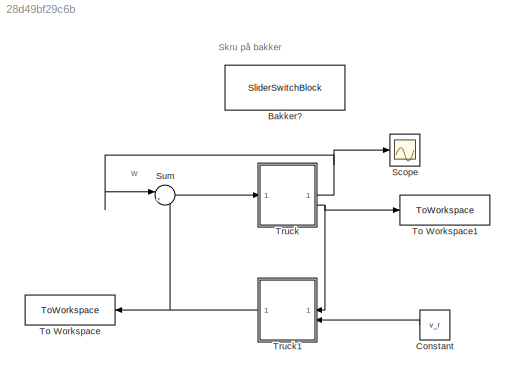
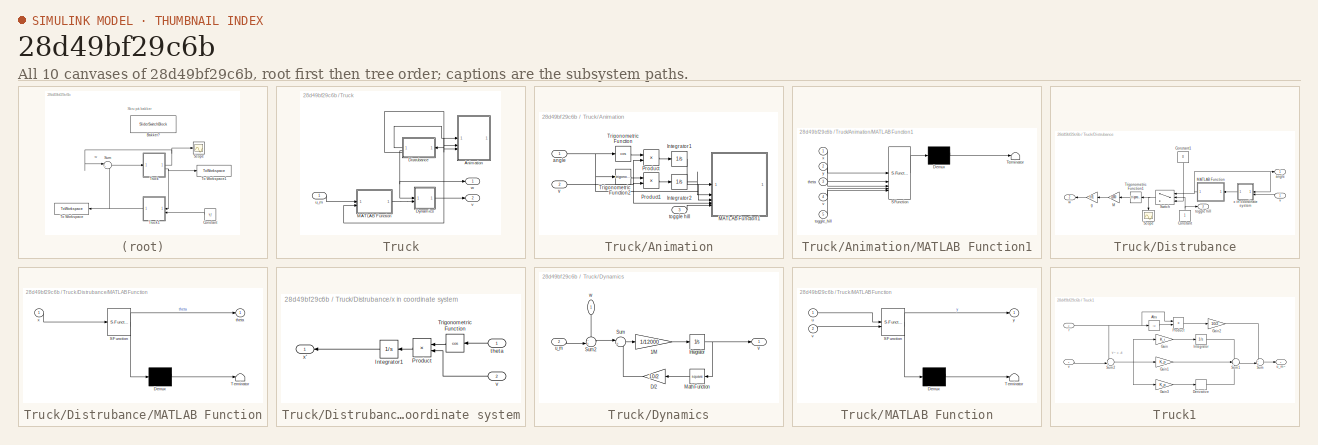
[diagram: thumbnail index - all 10 canvases of the model, root first then tree order]
MODEL slx_28d49bf29c6b
KIND model
CONFIG AbsTol = auto
CONFIG EnableMultiTasking = off
CONFIG FixedStep = auto
CONFIG MaxStep = 0.01
CONFIG MinStep = auto
CONFIG RelTol = 1e-3
CONFIG SampleTimeConstraint = Unconstrained
CONFIG SolverName = VariableStepAuto
CONFIG StartTime = 0.0
CONFIG StopTime = 100
BLOCK [SliderSwitchBlock] Bakker?
  LabelPosition = Hide
BLOCK [Constant] Constant
  NameLocation = top
  Value = v_r
BLOCK [Scope] Scope
  Floating = off
  NumInputPorts = 1
  ScopeSpecificationString = Simulink.scopes.TimeScopeBlockCfg('CurrentConfiguration', extmgr.ConfigurationSet(extmgr.Configuration('Core','General UI',true),extmgr.Configuration('Core','Source UI',true),extmgr.Configuration('Sources','WiredSimulink',true,'DataLoggingVariableName','ScopeData1'),extmgr.Configuration('Visuals','Time Domain',true,'SerializedDisplays',{struct('MinYLimReal','-1.00000','MaxYLimReal','1.00000','YLab...<+1431ch>
BLOCK [Sum] Sum
  Inputs = |++
BLOCK [ToWorkspace] To Workspace
  FixptAsFi = on
  MaxDataPoints = inf
  NameLocation = top
  SampleTime = -1
  VariableName = u_m
BLOCK [ToWorkspace] To Workspace1
  FixptAsFi = on
  MaxDataPoints = inf
  SampleTime = -1
  VariableName = v
BLOCK [SubSystem] Truck
BLOCK [SubSystem] Truck/Animation
BLOCK [Integrator] Truck/Animation/Integrator1
BLOCK [Integrator] Truck/Animation/Integrator2
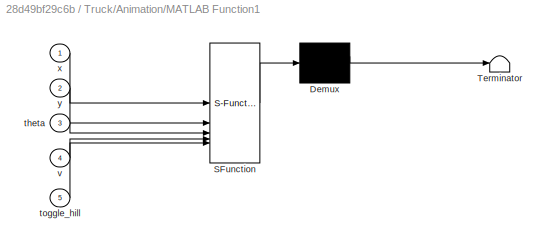
BLOCK [SubSystem] Truck/Animation/MATLAB Function1
  ErrorFcn = Stateflow.Translate.translate
  PermitHierarchicalResolution = ExplicitOnly
  SFBlockType = MATLAB Function
  SystemSampleTime = 1/30
  TreatAsAtomicUnit = on
BLOCK [Demux] Truck/Animation/MATLAB Function1/ Demux 
  Outputs = 1
BLOCK [S-Function] Truck/Animation/MATLAB Function1/ SFunction 
  EnableBusSupport = on
  FunctionName = sf_sfun
  PortCounts = [5 1]
  SFcnIsStateOwnerBlock = off
  SFunctionDeploymentMode = off
  Tag = Stateflow S-Function 3
BLOCK [Terminator] Truck/Animation/MATLAB Function1/ Terminator 
BLOCK [Inport] Truck/Animation/MATLAB Function1/theta
  Port = 3
BLOCK [Inport] Truck/Animation/MATLAB Function1/toggle_hill
  Port = 5
BLOCK [Inport] Truck/Animation/MATLAB Function1/v
  Port = 4
BLOCK [Inport] Truck/Animation/MATLAB Function1/x
BLOCK [Inport] Truck/Animation/MATLAB Function1/y
  Port = 2
BLOCK [Product] Truck/Animation/Product
BLOCK [Product] Truck/Animation/Product1
BLOCK [Trigonometry] Truck/Animation/Trigonometric Function
  Operator = cos
BLOCK [Trigonometry] Truck/Animation/Trigonometric Function2
BLOCK [Inport] Truck/Animation/angle
BLOCK [Inport] Truck/Animation/toggle hill
  Port = 3
BLOCK [Inport] Truck/Animation/v
  Port = 2
BLOCK [SubSystem] Truck/Distrubance
  NameLocation = top
BLOCK [Constant] Truck/Distrubance/Constant
  NameLocation = right
BLOCK [Constant] Truck/Distrubance/Constant1
  NameLocation = left
  Value = 0
BLOCK [Gain] Truck/Distrubance/M
  Gain = 12000
  NameLocation = top
BLOCK [SubSystem] Truck/Distrubance/MATLAB Function
  ErrorFcn = Stateflow.Translate.translate
  NameLocation = top
  PermitHierarchicalResolution = ExplicitOnly
  SFBlockType = MATLAB Function
  TreatAsAtomicUnit = on
BLOCK [Demux] Truck/Distrubance/MATLAB Function/ Demux 
  Outputs = 1
BLOCK [S-Function] Truck/Distrubance/MATLAB Function/ SFunction 
  EnableBusSupport = on
  FunctionName = sf_sfun
  PortCounts = [1 2]
  SFcnIsStateOwnerBlock = off
  SFunctionDeploymentMode = off
  Tag = Stateflow S-Function 2
BLOCK [Terminator] Truck/Distrubance/MATLAB Function/ Terminator 
BLOCK [Outport] Truck/Distrubance/MATLAB Function/theta
BLOCK [Inport] Truck/Distrubance/MATLAB Function/x
BLOCK [Scope] Truck/Distrubance/Scope
  Floating = off
  NameLocation = left
  NumInputPorts = 1
  ScopeSpecificationString = Simulink.scopes.TimeScopeBlockCfg('CurrentConfiguration', extmgr.ConfigurationSet(extmgr.Configuration('Core','General UI',true),extmgr.Configuration('Core','Source UI',true),extmgr.Configuration('Sources','WiredSimulink',true,'DataLoggingVariableName','ScopeData1'),extmgr.Configuration('Visuals','Time Domain',true,'SerializedDisplays',{struct('MinYLimReal','-0.12842','MaxYLimReal','0.1776','YLabe...<+1445ch>
BLOCK [Switch] Truck/Distrubance/Switch
  Criteria = u2 > Threshold
  InputSameDT = off
  NameLocation = top
  SaturateOnIntegerOverflow = off
BLOCK [Trigonometry] Truck/Distrubance/Trigonometric Function1
  NameLocation = top
BLOCK [Outport] Truck/Distrubance/angle
BLOCK [Gain] Truck/Distrubance/g
  Gain = 9.81
  NameLocation = top
BLOCK [Outport] Truck/Distrubance/toggle hill
  Port = 3
BLOCK [Inport] Truck/Distrubance/v
  NameLocation = top
BLOCK [Outport] Truck/Distrubance/w
  NameLocation = top
  Port = 2
BLOCK [SubSystem] Truck/Distrubance/x in coordinate system
  NameLocation = top
BLOCK [Integrator] Truck/Distrubance/x in coordinate system/Integrator1
  NameLocation = top
BLOCK [Product] Truck/Distrubance/x in coordinate system/Product
  NameLocation = top
BLOCK [Trigonometry] Truck/Distrubance/x in coordinate system/Trigonometric Function
  NameLocation = top
  Operator = cos
BLOCK [Inport] Truck/Distrubance/x in coordinate system/theta
  NameLocation = top
BLOCK [Inport] Truck/Distrubance/x in coordinate system/v
  NameLocation = top
  Port = 2
BLOCK [Outport] Truck/Distrubance/x in coordinate system/x'
BLOCK [SubSystem] Truck/Dynamics
  ClipboardFcn = parameters_truck.m
BLOCK [Gain] Truck/Dynamics/1//M
  Gain = 1/12000
BLOCK [Gain] Truck/Dynamics/D//2
  Gain = 10/2
  NameLocation = top
BLOCK [Integrator] Truck/Dynamics/Integrator
BLOCK [Math] Truck/Dynamics/Math Function
  NameLocation = top
  Operator = square
BLOCK [Sum] Truck/Dynamics/Sum
  Inputs = |+-
BLOCK [Sum] Truck/Dynamics/Sum2
  Inputs = -+|
BLOCK [Inport] Truck/Dynamics/u_m
  Port = 2
BLOCK [Outport] Truck/Dynamics/v
BLOCK [Inport] Truck/Dynamics/w
  NameLocation = left
BLOCK [SubSystem] Truck/MATLAB Function
  ErrorFcn = Stateflow.Translate.translate
  PermitHierarchicalResolution = ExplicitOnly
  SFBlockType = MATLAB Function
  TreatAsAtomicUnit = on
BLOCK [Demux] Truck/MATLAB Function/ Demux 
  Outputs = 1
BLOCK [S-Function] Truck/MATLAB Function/ SFunction 
  EnableBusSupport = on
  FunctionName = sf_sfun
  PortCounts = [2 2]
  SFcnIsStateOwnerBlock = off
  SFunctionDeploymentMode = off
  Tag = Stateflow S-Function 1
BLOCK [Terminator] Truck/MATLAB Function/ Terminator 
BLOCK [Inport] Truck/MATLAB Function/u
BLOCK [Inport] Truck/MATLAB Function/v
  Port = 2
BLOCK [Outport] Truck/MATLAB Function/y
BLOCK [Inport] Truck/u_m
BLOCK [Outport] Truck/v
  Port = 2
BLOCK [Outport] Truck/w
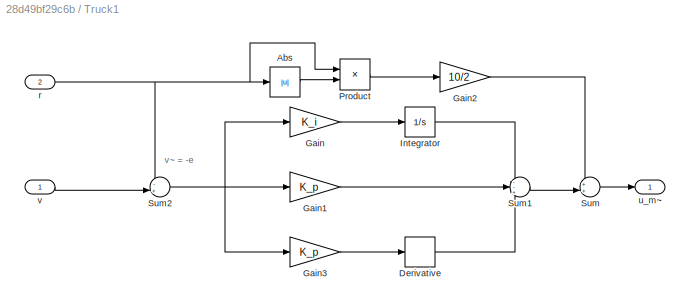
BLOCK [SubSystem] Truck1
  NameLocation = top
BLOCK [Abs] Truck1/Abs
  SaturateOnIntegerOverflow = off
BLOCK [Derivative] Truck1/Derivative
BLOCK [Gain] Truck1/Gain
  Gain = K_i
BLOCK [Gain] Truck1/Gain1
  Gain = K_p
BLOCK [Gain] Truck1/Gain2
  Gain = 10/2
BLOCK [Gain] Truck1/Gain3
  Gain = K_p
BLOCK [Integrator] Truck1/Integrator
BLOCK [Product] Truck1/Product
BLOCK [Sum] Truck1/Sum
  Inputs = ++|
BLOCK [Sum] Truck1/Sum1
  Inputs = --+
BLOCK [Sum] Truck1/Sum2
  Inputs = -+|
BLOCK [Inport] Truck1/r
  Port = 2
BLOCK [Outport] Truck1/u_m~
BLOCK [Inport] Truck1/v
ANNOTATION (root): Skru på bakker
ANNOTATION (root): w
ANNOTATION Truck1: v~ = -e
LINE Constant:1 -> Truck1:2
LINE Sum:1 -> Truck:1
LINE Truck/Animation/Integrator1:1 -> Truck/Animation/MATLAB Function1:1
LINE Truck/Animation/Integrator2:1 -> Truck/Animation/MATLAB Function1:2
LINE Truck/Animation/Product1:1 -> Truck/Animation/Integrator2:1
LINE Truck/Animation/Product:1 -> Truck/Animation/Integrator1:1
LINE Truck/Animation/Trigonometric Function2:1 -> Truck/Animation/Product1:1
LINE Truck/Animation/Trigonometric Function:1 -> Truck/Animation/Product:1
NET Truck/Animation/angle:1 -> Truck/Animation/MATLAB Function1:3, Truck/Animation/Trigonometric Function2:1, Truck/Animation/Trigonometric Function:1
LINE Truck/Animation/toggle hill:1 -> Truck/Animation/MATLAB Function1:5
NET Truck/Animation/v:1 -> Truck/Animation/MATLAB Function1:4, Truck/Animation/Product1:2, Truck/Animation/Product:2
LINE Truck/Distrubance/Constant1:1 -> Truck/Distrubance/Switch:3
NET Truck/Distrubance/Constant:1 -> Truck/Distrubance/Switch:2, Truck/Distrubance/toggle hill:1
LINE Truck/Distrubance/M:1 -> Truck/Distrubance/g:1
NET Truck/Distrubance/MATLAB Function:1 -> Truck/Distrubance/Switch:1, Truck/Distrubance/angle:1, Truck/Distrubance/x in coordinate system:1
NET Truck/Distrubance/Switch:1 -> Truck/Distrubance/Scope:1, Truck/Distrubance/Trigonometric Function1:1
LINE Truck/Distrubance/Trigonometric Function1:1 -> Truck/Distrubance/M:1
LINE Truck/Distrubance/g:1 -> Truck/Distrubance/w:1
LINE Truck/Distrubance/v:1 -> Truck/Distrubance/x in coordinate system:2
LINE Truck/Distrubance/x in coordinate system/Integrator1:1 -> Truck/Distrubance/x in coordinate system/x':1
LINE Truck/Distrubance/x in coordinate system/Product:1 -> Truck/Distrubance/x in coordinate system/Integrator1:1
LINE Truck/Distrubance/x in coordinate system/Trigonometric Function:1 -> Truck/Distrubance/x in coordinate system/Product:1
LINE Truck/Distrubance/x in coordinate system/theta:1 -> Truck/Distrubance/x in coordinate system/Trigonometric Function:1
LINE Truck/Distrubance/x in coordinate system/v:1 -> Truck/Distrubance/x in coordinate system/Product:2
LINE Truck/Distrubance/x in coordinate system:1 -> Truck/Distrubance/MATLAB Function:1
LINE Truck/Distrubance:1 -> Truck/Animation:1
NET Truck/Distrubance:2 -> Truck/Dynamics:1, Truck/w:1
LINE Truck/Distrubance:3 -> Truck/Animation:3
LINE Truck/Dynamics/1//M:1 -> Truck/Dynamics/Integrator:1
LINE Truck/Dynamics/D//2:1 -> Truck/Dynamics/Sum:2
NET Truck/Dynamics/Integrator:1 -> Truck/Dynamics/Math Function:1, Truck/Dynamics/v:1
LINE Truck/Dynamics/Math Function:1 -> Truck/Dynamics/D//2:1
LINE Truck/Dynamics/Sum2:1 -> Truck/Dynamics/Sum:1
LINE Truck/Dynamics/Sum:1 -> Truck/Dynamics/1//M:1
LINE Truck/Dynamics/u_m:1 -> Truck/Dynamics/Sum2:2
LINE Truck/Dynamics/w:1 -> Truck/Dynamics/Sum2:1
NET Truck/Dynamics:1 -> Truck/Animation:2, Truck/Distrubance:1, Truck/MATLAB Function:2, Truck/v:1
LINE Truck/MATLAB Function:1 -> Truck/Dynamics:2
LINE Truck/u_m:1 -> Truck/MATLAB Function:1
LINE Truck1/Abs:1 -> Truck1/Product:2
LINE Truck1/Derivative:1 -> Truck1/Sum1:3
LINE Truck1/Gain1:1 -> Truck1/Sum1:2
LINE Truck1/Gain2:1 -> Truck1/Sum:1
LINE Truck1/Gain3:1 -> Truck1/Derivative:1
LINE Truck1/Gain:1 -> Truck1/Integrator:1
LINE Truck1/Integrator:1 -> Truck1/Sum1:1
LINE Truck1/Product:1 -> Truck1/Gain2:1
LINE Truck1/Sum1:1 -> Truck1/Sum:2
NET Truck1/Sum2:1 -> Truck1/Gain1:1, Truck1/Gain3:1, Truck1/Gain:1
LINE Truck1/Sum:1 -> Truck1/u_m~:1
NET Truck1/r:1 -> Truck1/Abs:1, Truck1/Product:1, Truck1/Sum2:1
LINE Truck1/v:1 -> Truck1/Sum2:2
NET Truck1:1 -> Sum:2, To Workspace:1
NET Truck:1 -> Scope:1, Sum:1
NET Truck:2 -> To Workspace1:1, Truck1:1
note: NET lines group one-source signal fan-out (src -> all destinations, sorted); 1:1 wires keep LINE
CHART Truck/MATLAB Function states=1 transitions=1
  STATE_LABEL 'eML_blk_kernel()'
  STATE_LABEL 'SCRIPT:\nfunction y = saturation(u,v)\n    Pmax = 400000;\n    epsilon = 0.001;\n    \n    sat = Pmax/sqrt(v^2+epsilon);\n    y = max(min(u,sat),-sat);\n'
CHART Truck/Distrubance/MATLAB Function states=1 transitions=1
  STATE_LABEL 'eML_blk_kernel()'
  STATE_LABEL 'SCRIPT:\nfunction theta = truck_road(x)\n    %    height = 5;\n    %    offset = 5;\n    %    slope = 0.05;\n    \n    %    y = height*(tanh(slope*x-offset)+1);\n    %    dy = height*slope*sech(offset-slope*x).^2;\n\n    a = 5;\n    b = 0.04;\n    c = -0.2;\n    d = 0.06;\n\n    y = a*exp(sin(b*x))+c*exp(cos(d*x))-a*exp(sin(b*0))-c*exp(cos(d*0));\n    dy = a*b*exp(sin(b*x)).*cos(b*x)-c*d*sin(d*x).*exp(cos(d*x));...<+30ch>'
CHART Truck/Animation/MATLAB Function1 states=1 transitions=1
  STATE_LABEL 'eML_blk_kernel()'
  STATE_LABEL 'SCRIPT:\nfunction plot_truck(x,y,theta,v,toggle_hill)\n    % Parameters\n    l = 8;\n    persistent Truck;\n\n    % Plotting Truck\n    if isempty(Truck)\n        Truck = initialize_plot();\n    else\n        if toggle_hill > 0.5\n            update_truck_position(Truck,x,y,theta,v);\n        else\n            update_truck_position(Truck,x,0,0,v);\n        end\n    end    \n\n    drawnow;\n\n    % Functions\n    func...<+3022ch>'
CHART  states=0 transitions=0
CHART  states=0 transitions=0
CHART  states=0 transitions=0
